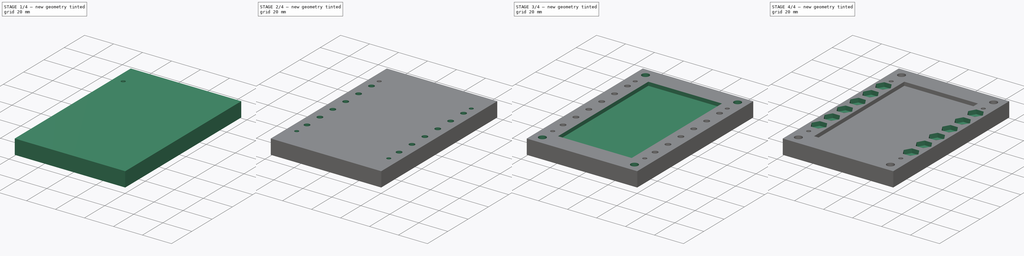
[diagram: build sequence overview — one tinted view per stage of 4, left to right]
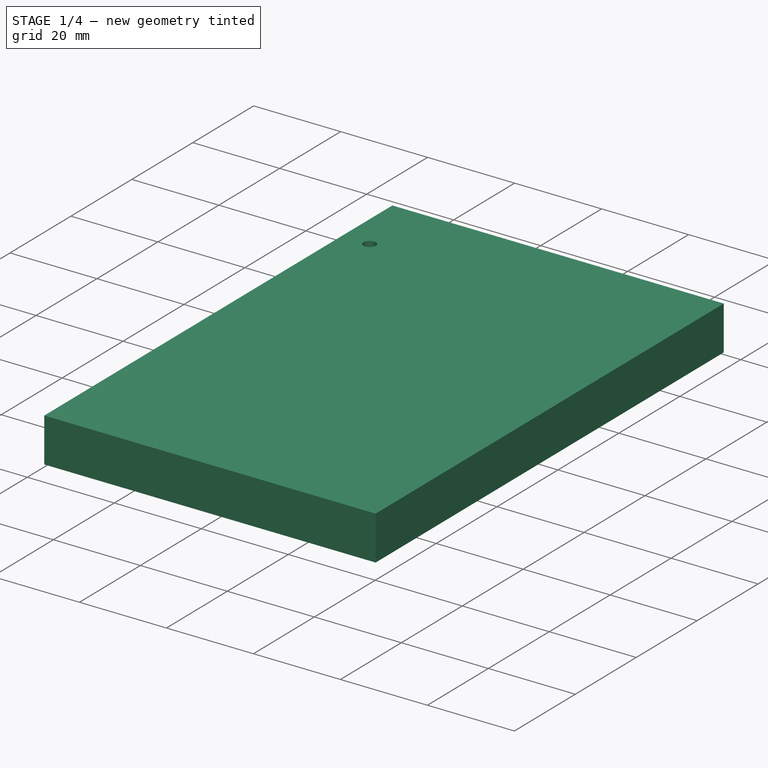
[diagram: stage 1 of 4 — iso view after this stage's code; geometry added in this stage tinted green]
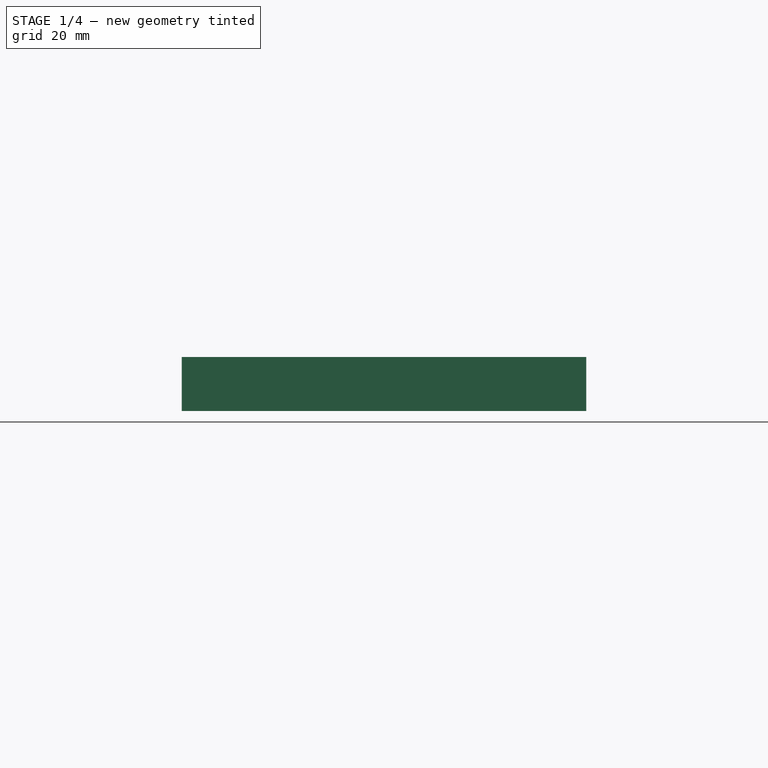
[diagram: stage 1 of 4 — front view after this stage's code; geometry added in this stage tinted green]
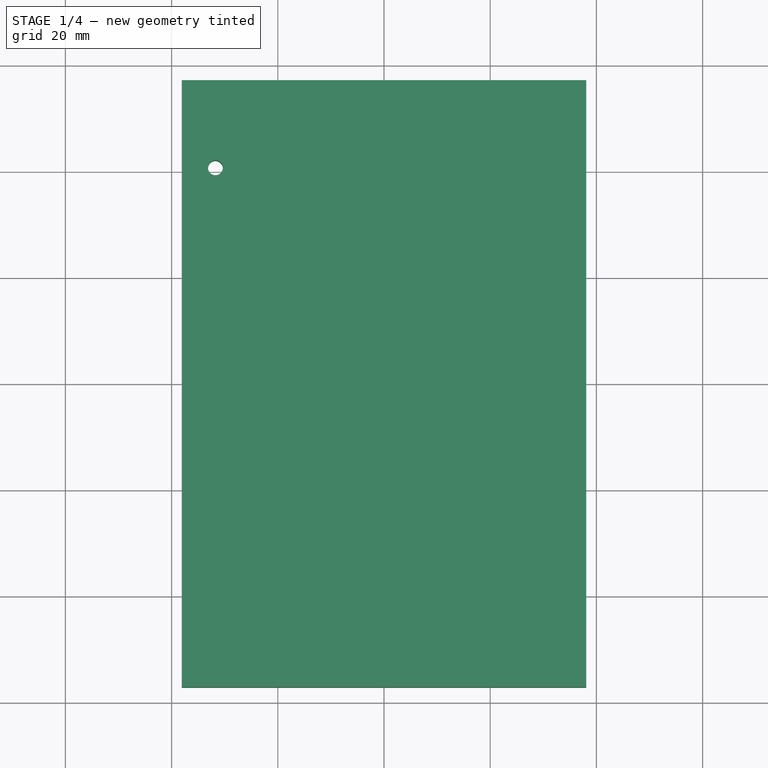
[diagram: stage 1 of 4 — top view after this stage's code; geometry added in this stage tinted green]
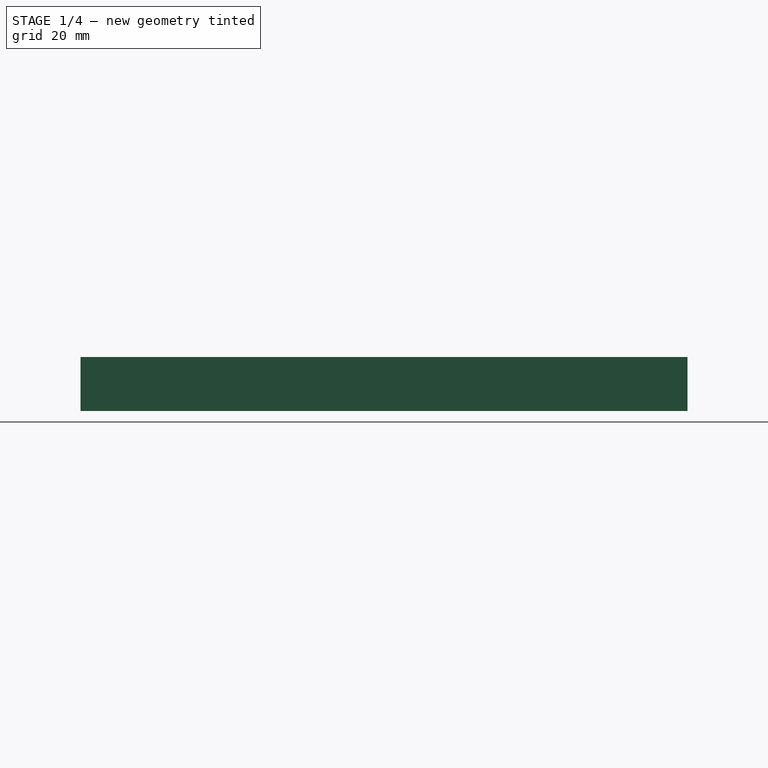
[diagram: stage 1 of 4 — right view after this stage's code; geometry added in this stage tinted green]
FCSTD DOCUMENT  (FreeCAD 0.19R24054 (Git))
Label: switchbox_v1
License: All rights reserved
LicenseURL: http://en.wikipedia.org/wiki/All_rights_reserved
objects: Sketcher::SketchObject×6, PartDesign::Mirrored×6, PartDesign::MultiTransform×4, PartDesign::Hole×3, PartDesign::LinearPattern×2, PartDesign::Pocket×2, PartDesign::Pad×1, PartDesign::Body×1, PartDesign::CoordinateSystem×1, App::Part×1
note: 32 computed .brp shape members not serialized (recipe doc carries the construction recipe); baked Part::Feature solids carry a one-line shape summary decoded from their .brp

FEATURE [Sketcher::SketchObject] Sketch
  FullyConstrained = false
  MapMode = 5
  Support = -> [XY_Plane001]
  sketch-geometry (6):
    g0: LineSegment StartX=-38.1 StartY=57.15 StartZ=0 EndX=38.1 EndY=57.15 EndZ=0
    g1: LineSegment StartX=38.1 StartY=57.15 StartZ=0 EndX=38.1 EndY=-57.15 EndZ=0
    g2: LineSegment StartX=38.1 StartY=-57.15 StartZ=0 EndX=-38.1 EndY=-57.15 EndZ=0
    g3: LineSegment StartX=-38.1 StartY=-57.15 StartZ=0 EndX=-38.1 EndY=57.15 EndZ=0
    g4: LineSegment StartX=0 StartY=0 StartZ=0 EndX=38.1 EndY=0 EndZ=0
    g5: LineSegment StartX=0 StartY=0 StartZ=0 EndX=0 EndY=57.15 EndZ=0
  constraints (16):
    c: Coincident(g0,g1)
    c: Coincident(g1,g2)
    c: Coincident(g2,g3)
    c: Coincident(g3,g0)
    c: Horizontal(g0)
    c: Horizontal(g2)
    c: Vertical(g1)
    c: Vertical(g3)
    c: Coincident(g4,g-1)
    c: Horizontal(g4)
    c: Coincident(g5,g4)
    c: Vertical(g5)
    c: Symmetric(g0,g0,g5)
    c: Symmetric(g1,g1,g4)
    c: DistanceY(g1,g1) = 114.3
    c: DistanceX(g0,g0) = 76.2
FEATURE [PartDesign::Pad] Pad
  AllowMultiFace = false
  Direction = (1,1,1)
  Length = 10.16
  Length2 = 99.9998
  Profile = -> Sketch
  Type = 0
FEATURE [Sketcher::SketchObject] Sketch001
  FullyConstrained = false
  MapMode = 5
  Placement = pos=(0,0,10.16) rot=(0,0,1;0rad)
  Support = -> [Pad]
  sketch-geometry (1):
    g0: Circle CenterX=-31.75 CenterY=40.64 CenterZ=0 NormalX=0 NormalY=0 NormalZ=1 AngleXU=0 Radius=1.397
  constraints (3):
    c: DistanceY(g0) = 40.64
    c: DistanceX(g0) = -31.75
    c: Diameter(g0) = 2.794
FEATURE [PartDesign::Hole] Hole
  AllowMultiFace = false
  BaseFeature = -> Pad
  Depth = 25
  DepthType = 1
  Diameter = 2.794
  DrillForDepth = false
  DrillPoint = 1
  DrillPointAngle = 118
  HoleCutCountersinkAngle = 90
  HoleCutCustomValues = false
  HoleCutDepth = 0
  HoleCutDiameter = 0
  HoleCutType = 0
  ModelActualThread = false
  Profile = -> Sketch001
  Tapered = false
  TaperedAngle = 90
  ThreadAngle = 0
  ThreadClass = 0
  ThreadCutOffInner = 0
  ThreadCutOffOuter = 0
  ThreadDirection = 0
  ThreadFit = 0
  ThreadPitch = 0
  ThreadSize = 0
  ThreadType = 0
  Threaded = false
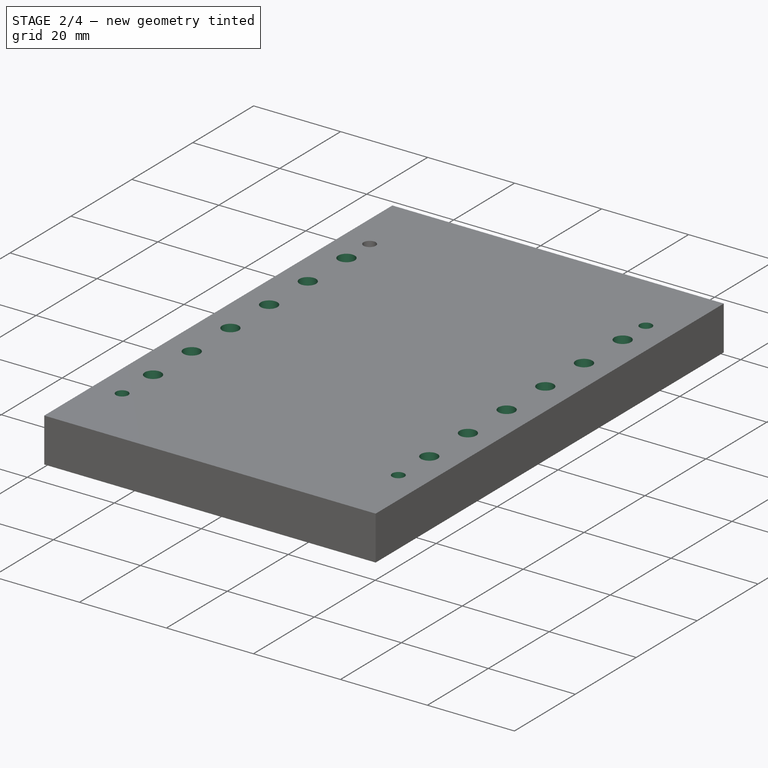
[diagram: stage 2 of 4 — iso view after this stage's code; geometry added in this stage tinted green]
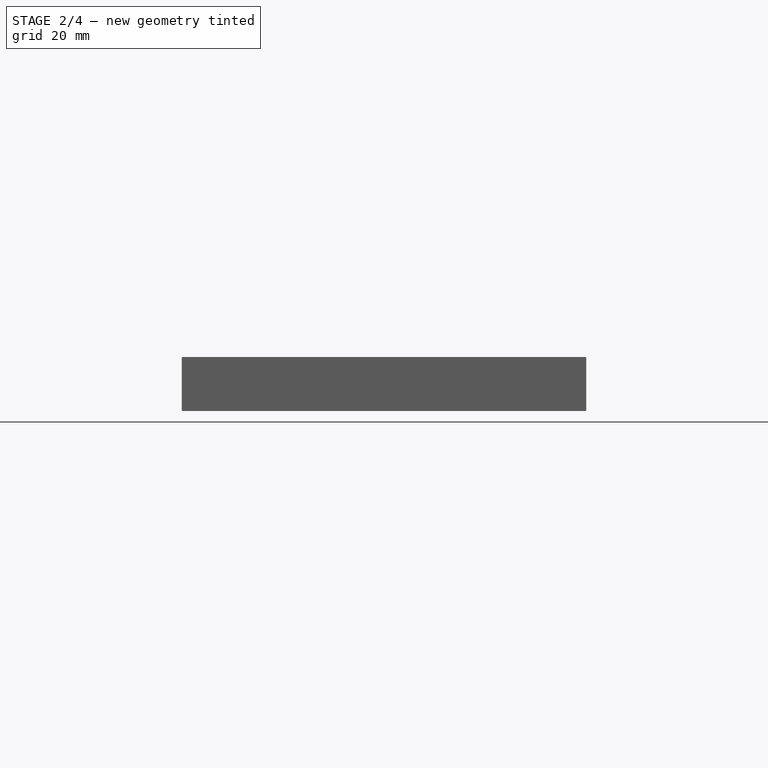
[diagram: stage 2 of 4 — front view after this stage's code; geometry added in this stage tinted green]
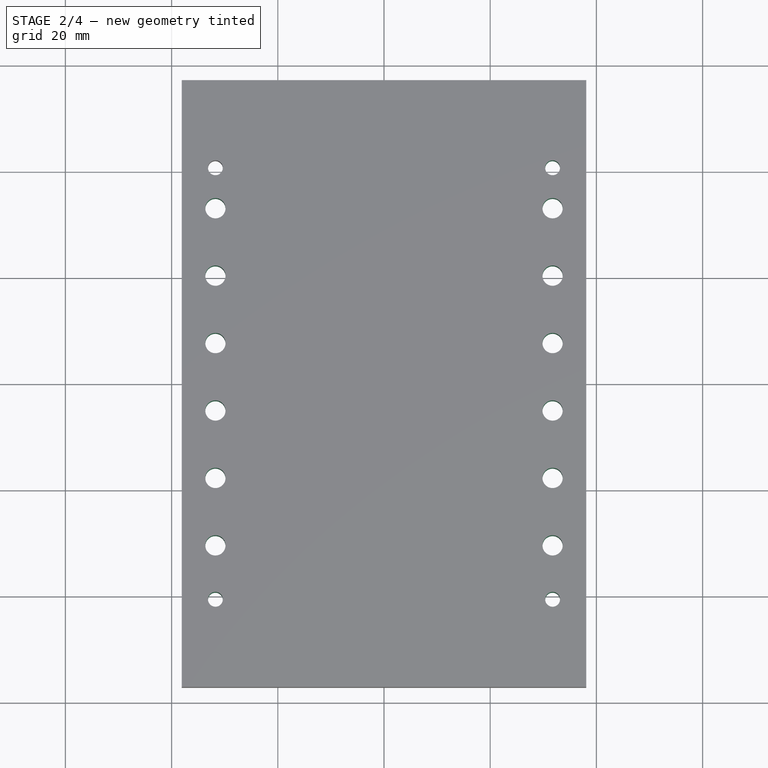
[diagram: stage 2 of 4 — top view after this stage's code; geometry added in this stage tinted green]
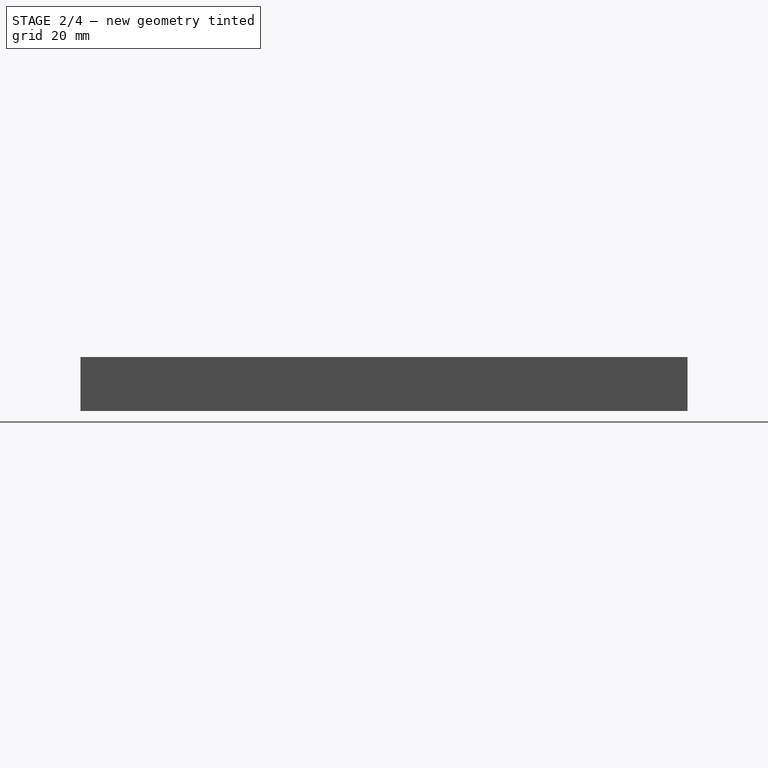
[diagram: stage 2 of 4 — right view after this stage's code; geometry added in this stage tinted green]
FEATURE [Sketcher::SketchObject] Sketch002
  FullyConstrained = false
  MapMode = 5
  Placement = pos=(0,0,10.16) rot=(0,0,1;0rad)
  Support = -> [Hole]
  sketch-geometry (1):
    g0: Circle CenterX=-31.75 CenterY=33.02 CenterZ=0 NormalX=0 NormalY=0 NormalZ=1 AngleXU=0 Radius=1.397
  constraints (3):
    c: DistanceX(g0) = -31.75
    c: DistanceY(g0) = 33.02
    c: Diameter(g0) = 2.794
FEATURE [PartDesign::Hole] Hole001
  AllowMultiFace = false
  BaseFeature = -> Hole
  Depth = 25
  DepthType = 1
  Diameter = 3.81
  DrillForDepth = false
  DrillPoint = 1
  DrillPointAngle = 118
  HoleCutCountersinkAngle = 90
  HoleCutCustomValues = false
  HoleCutDepth = 0
  HoleCutDiameter = 3.9116
  HoleCutType = 0
  ModelActualThread = false
  Profile = -> Sketch002
  Tapered = false
  TaperedAngle = 90
  ThreadAngle = 0
  ThreadClass = 0
  ThreadCutOffInner = 0
  ThreadCutOffOuter = 0
  ThreadDirection = 0
  ThreadFit = 0
  ThreadPitch = 0
  ThreadSize = 0
  ThreadType = 0
  Threaded = false
FEATURE [PartDesign::Mirrored] Mirrored
  MirrorPlane = -> Sketch001 [V_Axis]
FEATURE [PartDesign::Mirrored] Mirrored001
  MirrorPlane = -> Sketch001 [H_Axis]
FEATURE [PartDesign::MultiTransform] MultiTransform
  BaseFeature = -> Hole001
  Originals = -> [Hole]
  Transformations = -> [Mirrored,Mirrored001]
FEATURE [PartDesign::LinearPattern] LinearPattern
  Direction = -> Sketch002 [V_Axis]
  Length = 63.5
  Occurrences = 6
  Reversed = true
FEATURE [PartDesign::Mirrored] Mirrored002
  MirrorPlane = -> Sketch002 [V_Axis]
FEATURE [PartDesign::MultiTransform] MultiTransform001
  BaseFeature = -> MultiTransform
  Originals = -> [Hole001]
  Transformations = -> [LinearPattern,Mirrored002]
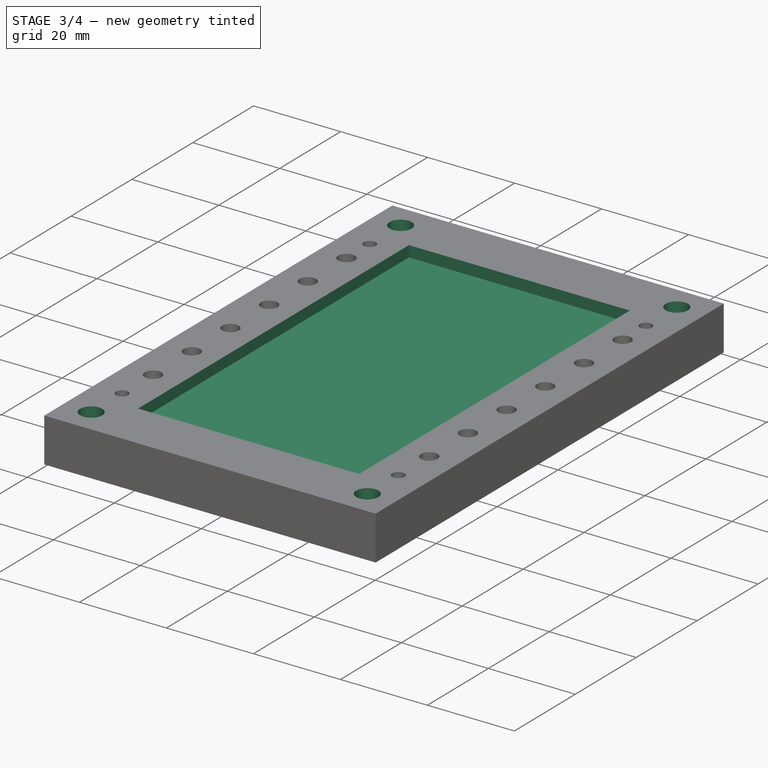
[diagram: stage 3 of 4 — iso view after this stage's code; geometry added in this stage tinted green]
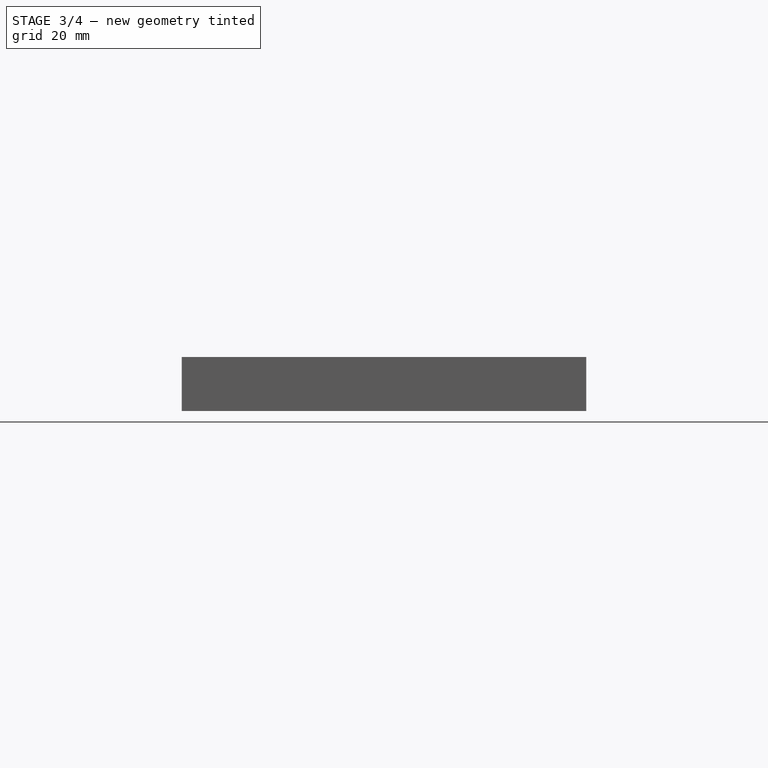
[diagram: stage 3 of 4 — front view after this stage's code; geometry added in this stage tinted green]
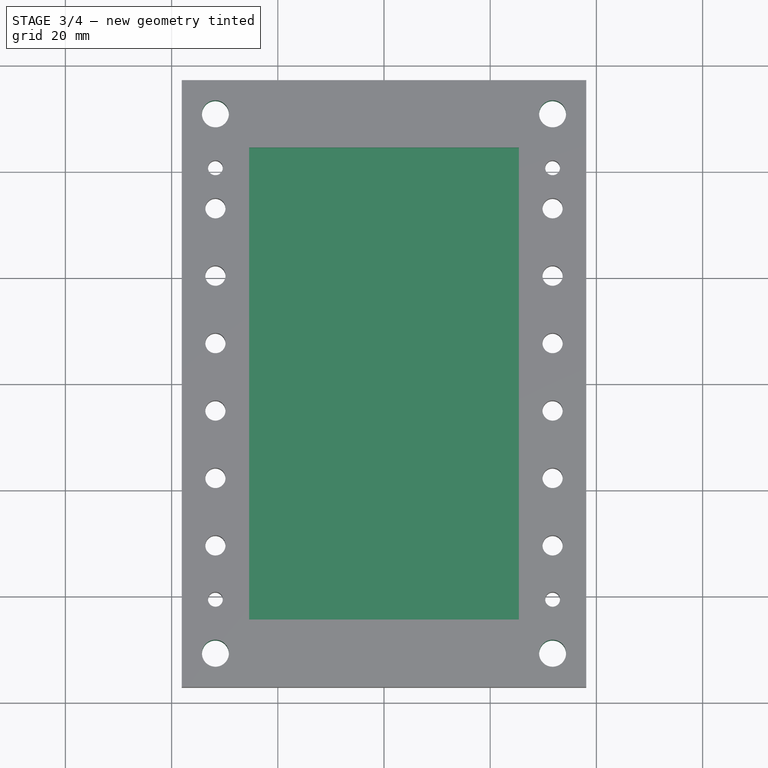
[diagram: stage 3 of 4 — top view after this stage's code; geometry added in this stage tinted green]
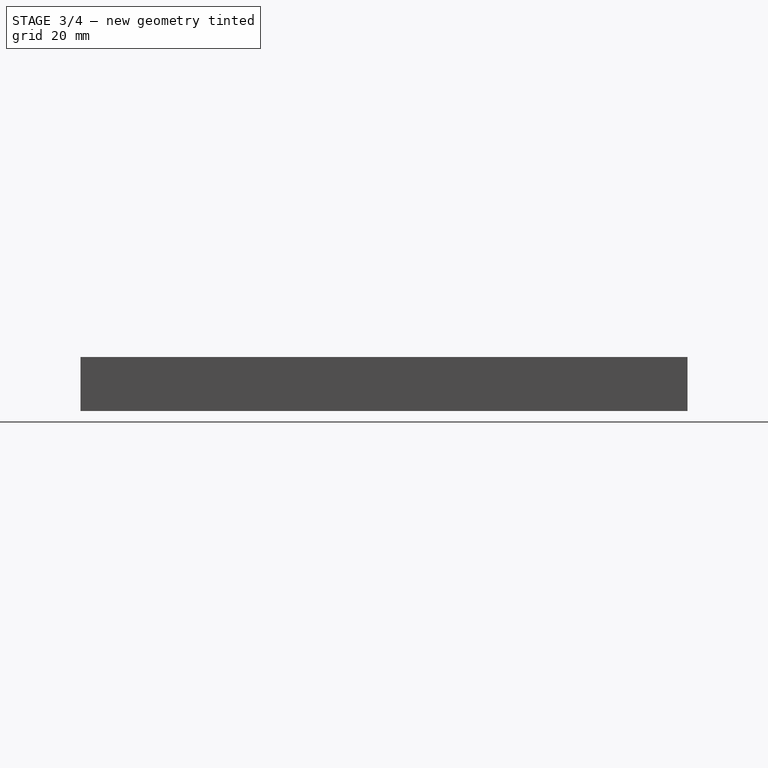
[diagram: stage 3 of 4 — right view after this stage's code; geometry added in this stage tinted green]
FEATURE [Sketcher::SketchObject] Sketch003
  FullyConstrained = true
  MapMode = 5
  Placement = pos=(0,0,10.16) rot=(0,0,1;0rad)
  Support = -> [MultiTransform001]
  sketch-geometry (6):
    g0: LineSegment StartX=-25.4 StartY=44.45 StartZ=0 EndX=25.4 EndY=44.45 EndZ=0
    g1: LineSegment StartX=25.4 StartY=44.45 StartZ=0 EndX=25.4 EndY=-44.45 EndZ=0
    g2: LineSegment StartX=25.4 StartY=-44.45 StartZ=0 EndX=-25.4 EndY=-44.45 EndZ=0
    g3: LineSegment StartX=-25.4 StartY=-44.45 StartZ=0 EndX=-25.4 EndY=44.45 EndZ=0
    g4: LineSegment StartX=0 StartY=2e-16 StartZ=0 EndX=25.4 EndY=2e-16 EndZ=0
    g5: LineSegment StartX=0 StartY=2e-16 StartZ=0 EndX=0 EndY=44.45 EndZ=0
  constraints (16):
    c: Coincident(g0,g1)
    c: Coincident(g1,g2)
    c: Coincident(g2,g3)
    c: Coincident(g3,g0)
    c: Horizontal(g0)
    c: Horizontal(g2)
    c: Vertical(g1)
    c: Vertical(g3)
    c: Coincident(g4,g-1)
    c: Horizontal(g4)
    c: Coincident(g5,g4)
    c: Vertical(g5)
    c: Symmetric(g0,g0,g5)
    c: Symmetric(g1,g1,g4)
    c: DistanceX(g0,g0) = 50.8
    c: DistanceY(g1,g1) = 88.9
FEATURE [PartDesign::Pocket] Pocket
  AllowMultiFace = false
  BaseFeature = -> MultiTransform001
  Length = 2.54
  Length2 = 99.9998
  Profile = -> Sketch003
  Type = 0
FEATURE [Sketcher::SketchObject] Sketch004
  ExternalGeometry = -> [Pocket]
  FullyConstrained = true
  MapMode = 5
  Placement = pos=(0,0,10.16) rot=(0,0,1;0rad)
  Support = -> [Pocket]
  sketch-geometry (1):
    g0: Circle CenterX=-31.75 CenterY=50.8 CenterZ=0 NormalX=0 NormalY=0 NormalZ=1 AngleXU=0 Radius=2.54
  constraints (3):
    c: DistanceY(g0,g-4) = 6.35
    c: DistanceX(g-4,g0) = 6.35
    c: Diameter(g0) = 5.08
FEATURE [PartDesign::Hole] Hole002  label="MountingHoles"
  AllowMultiFace = false
  BaseFeature = -> Pocket
  Depth = 25
  DepthType = 1
  Diameter = 5.08
  DrillForDepth = false
  DrillPoint = 1
  DrillPointAngle = 118
  HoleCutCountersinkAngle = 90
  HoleCutCustomValues = false
  HoleCutDepth = 0
  HoleCutDiameter = 0
  HoleCutType = 0
  ModelActualThread = false
  Profile = -> Sketch004
  Tapered = false
  TaperedAngle = 90
  ThreadAngle = 0
  ThreadClass = 0
  ThreadCutOffInner = 0
  ThreadCutOffOuter = 0
  ThreadDirection = 0
  ThreadFit = 0
  ThreadPitch = 0
  ThreadSize = 0
  ThreadType = 0
  Threaded = false
FEATURE [PartDesign::Mirrored] Mirrored003
  MirrorPlane = -> Sketch004 [V_Axis]
FEATURE [PartDesign::Mirrored] Mirrored004
  MirrorPlane = -> Sketch004 [H_Axis]
FEATURE [PartDesign::MultiTransform] MultiTransform002
  BaseFeature = -> Hole002
  Originals = -> [Hole002]
  Transformations = -> [Mirrored003,Mirrored004]
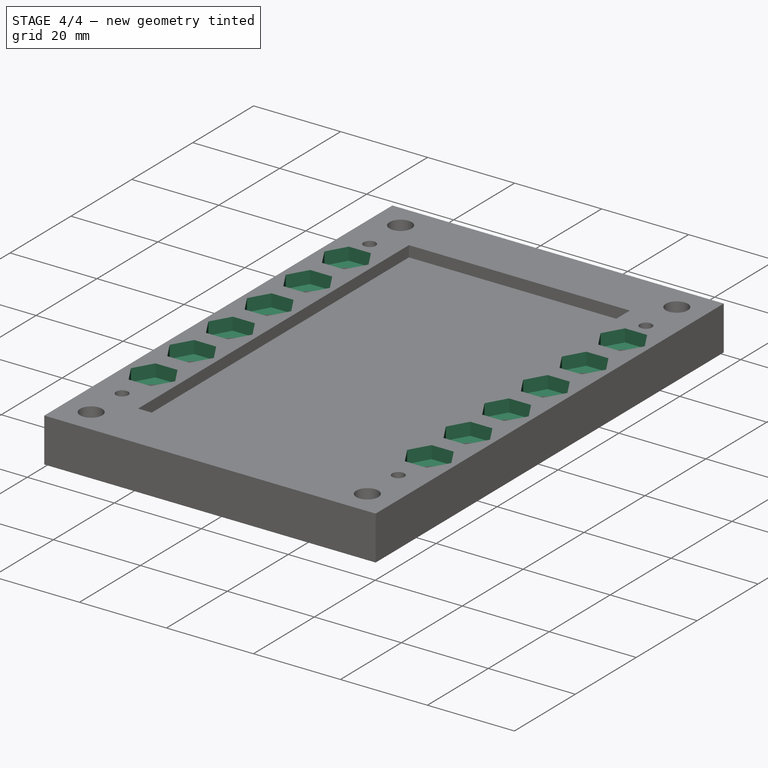
[diagram: stage 4 of 4 — iso view after this stage's code; geometry added in this stage tinted green]
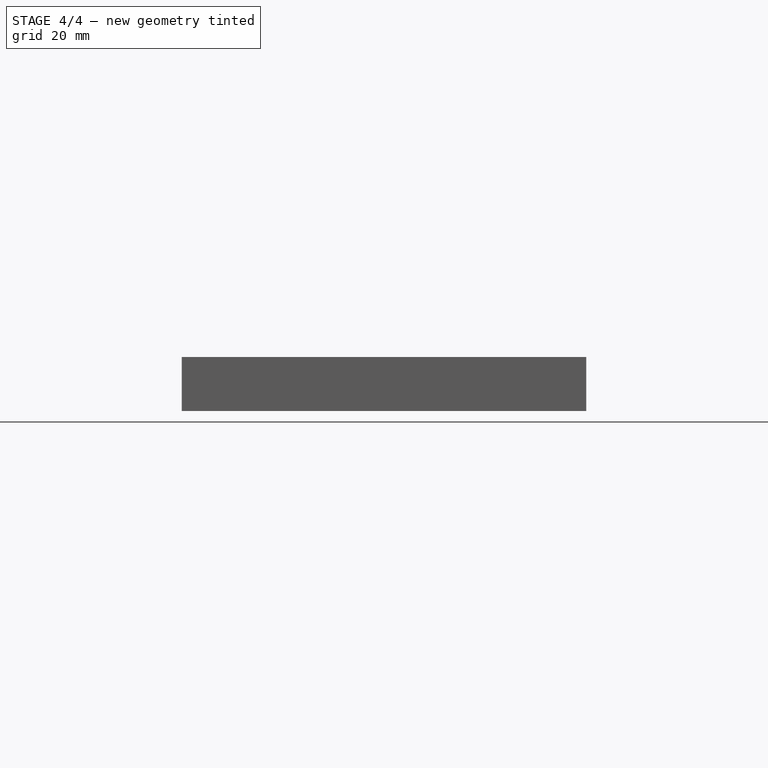
[diagram: stage 4 of 4 — front view after this stage's code; geometry added in this stage tinted green]
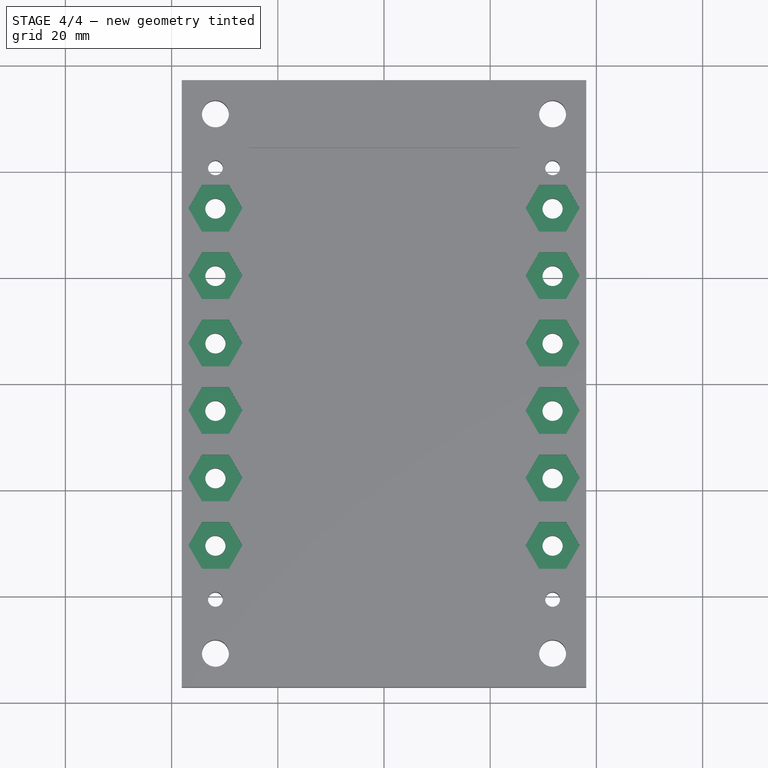
[diagram: stage 4 of 4 — top view after this stage's code; geometry added in this stage tinted green]
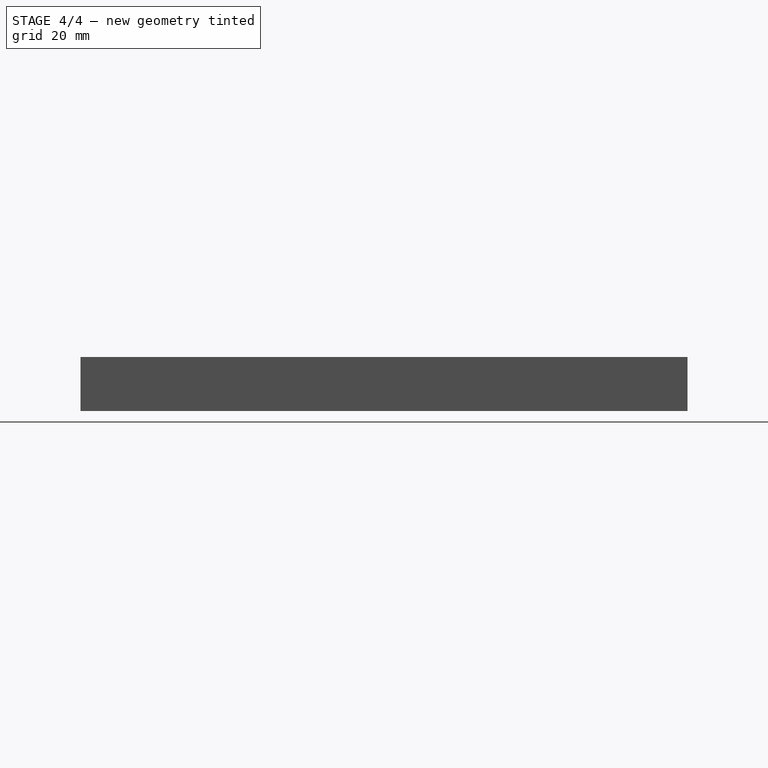
[diagram: stage 4 of 4 — right view after this stage's code; geometry added in this stage tinted green]
FEATURE [Sketcher::SketchObject] Sketch005
  ExternalGeometry = -> [MultiTransform002]
  FullyConstrained = true
  MapMode = 5
  Placement = pos=(0,0,10.16) rot=(0,0,1;0rad)
  Support = -> [MultiTransform002]
  sketch-geometry (7):
    g0: LineSegment StartX=-29.21 StartY=37.4194 StartZ=0 EndX=-34.29 EndY=37.4194 EndZ=0
    g1: LineSegment StartX=-34.29 StartY=37.4194 StartZ=0 EndX=-36.83 EndY=33.02 EndZ=0
    g2: LineSegment StartX=-36.83 StartY=33.02 StartZ=0 EndX=-34.29 EndY=28.6206 EndZ=0
    g3: LineSegment StartX=-34.29 StartY=28.6206 StartZ=0 EndX=-29.21 EndY=28.6206 EndZ=0
    g4: LineSegment StartX=-29.21 StartY=28.6206 StartZ=0 EndX=-26.67 EndY=33.02 EndZ=0
    g5: LineSegment StartX=-26.67 StartY=33.02 StartZ=0 EndX=-29.21 EndY=37.4194 EndZ=0
    g6: Circle CenterX=-31.75 CenterY=33.02 CenterZ=0 NormalX=0 NormalY=0 NormalZ=1 AngleXU=0 Radius=5.08
  constraints (16):
    c: Coincident(g0,g1)
    c: Coincident(g1,g2)
    c: Coincident(g2,g3)
    c: Coincident(g3,g4)
    c: Coincident(g4,g5)
    c: Coincident(g5,g0)
    c: Equal(g0, g1-g5) x5
    c: PointOnObject(g0,g6)
    c: PointOnObject(g1,g6)
    c: PointOnObject(g2,g6)
    c: PointOnObject(g3,g6)
    c: PointOnObject(g4,g6)
    c: PointOnObject(g5,g6)
    c: Horizontal(g3)
    c: Diameter(g6) = 10.16
    c: Coincident(g6,g-5)
FEATURE [PartDesign::Pocket] Pocket001
  BaseFeature = -> MultiTransform002
  Length = 2.921
  Length2 = 99.9998
  Profile = -> Sketch005
  Type = 0
FEATURE [PartDesign::LinearPattern] LinearPattern001
  Direction = -> Sketch005 [V_Axis]
  Length = 63.5
  Occurrences = 6
  Reversed = true
FEATURE [PartDesign::Mirrored] Mirrored005
  MirrorPlane = -> Sketch005 [V_Axis]
FEATURE [PartDesign::MultiTransform] MultiTransform003
  BaseFeature = -> Pocket001
  Originals = -> [Pocket001]
  Transformations = -> [LinearPattern001,Mirrored005]
FEATURE [PartDesign::Body] Body
  Group = -> [Sketch,Pad,Sketch001,Hole,Sketch002,Hole001,MultiTransform,Mirrored,Mirrored001,MultiTransform001,LinearPattern,Mirrored002,Sketch003,Pocket,Sketch004,Hole002,MultiTransform002,Mirrored003,Mirrored004,Sketch005,Pocket001,MultiTransform003,LinearPattern001,Mirrored005]
  Origin = -> Origin001
  Tip = -> MultiTransform003
FEATURE [PartDesign::CoordinateSystem] LCS_1
  AttacherType = Attacher::AttachEngine3D
  MapMode = 11
  Placement = pos=(-31.75,40.64,10.16) rot=(0,0,1;1.5708rad)
  Support = -> [MultiTransform003]
FEATURE [App::Part] Part
  Group = -> [Body,LCS_1]
  Origin = -> Origin
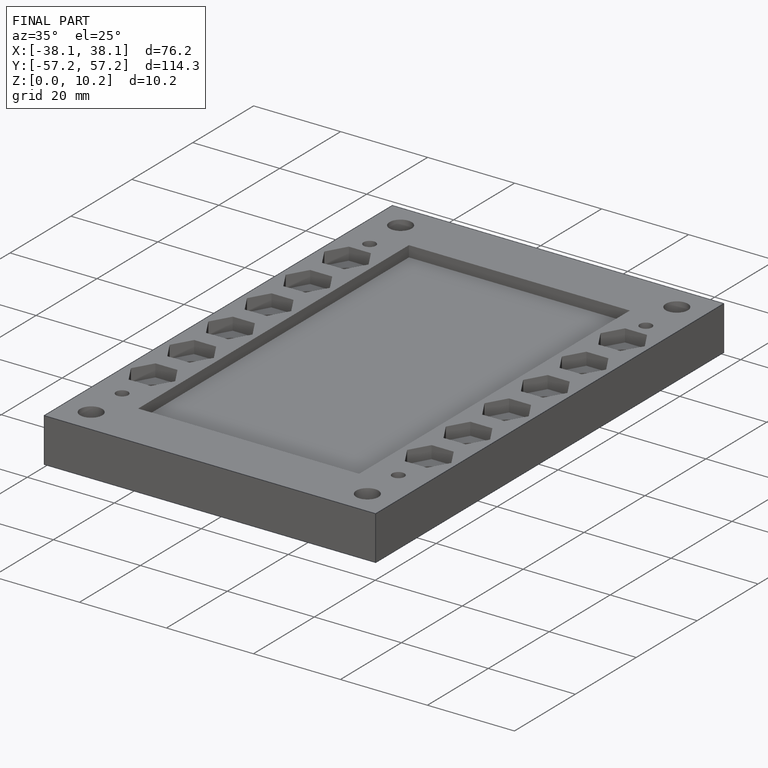
[diagram: finished part — iso view with bounding-box wireframe]
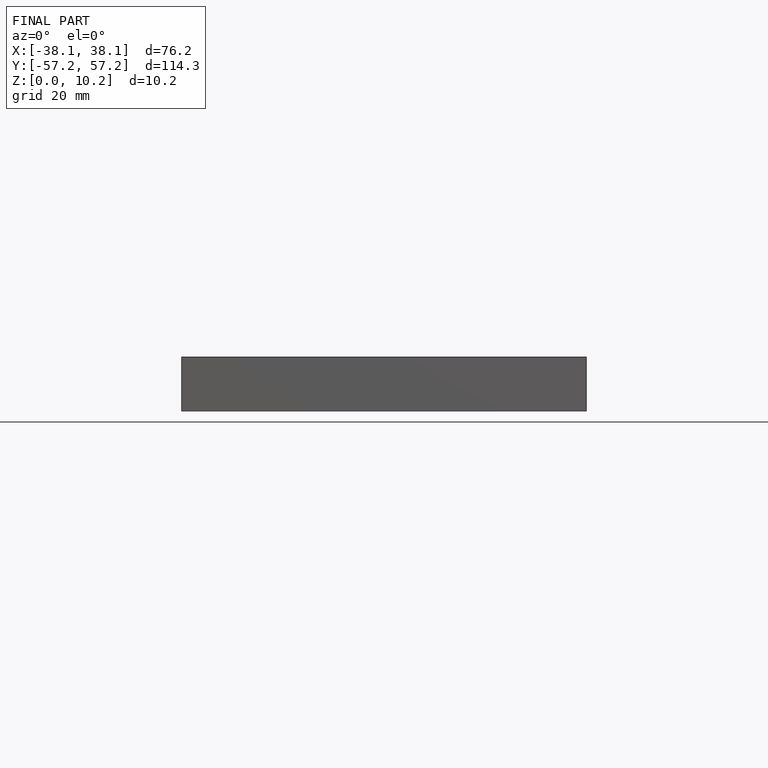
[diagram: finished part — front view with bounding-box wireframe]
